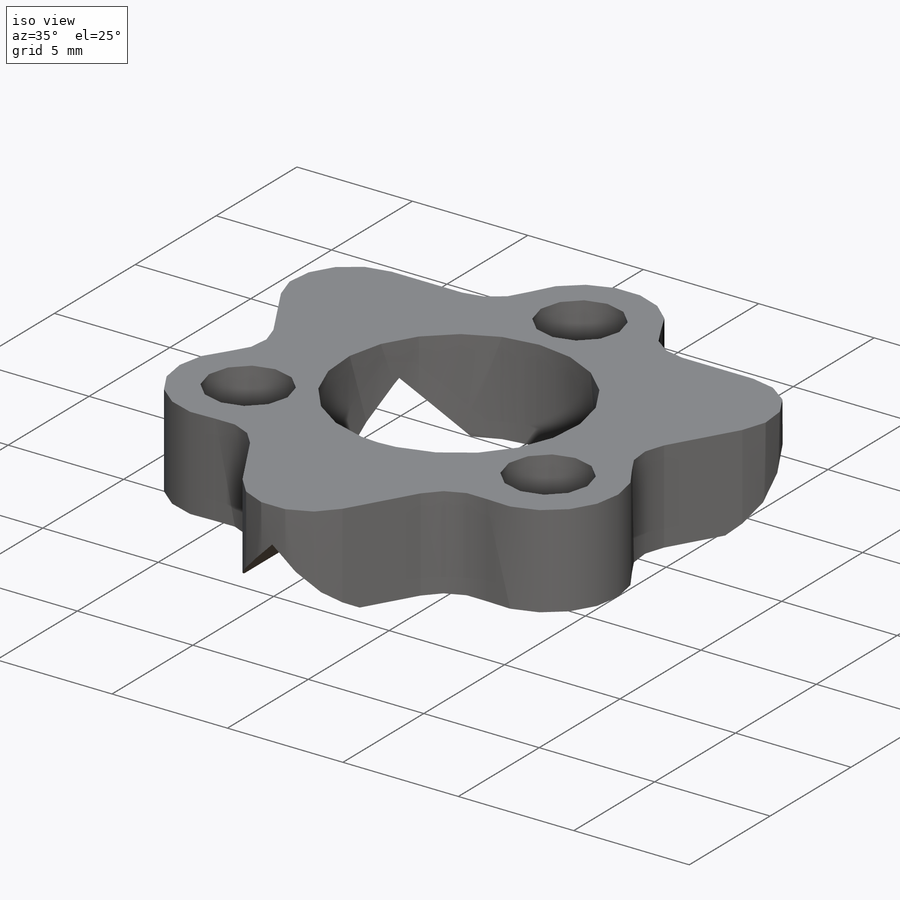
[diagram: iso view]
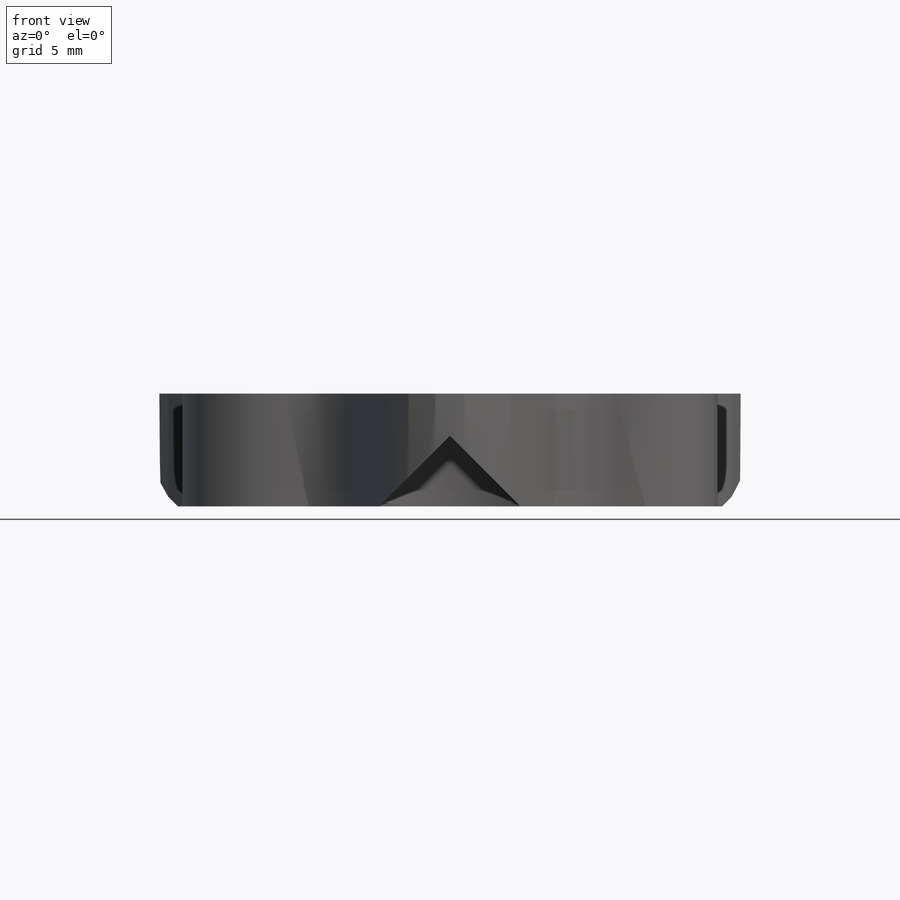
[diagram: front view]
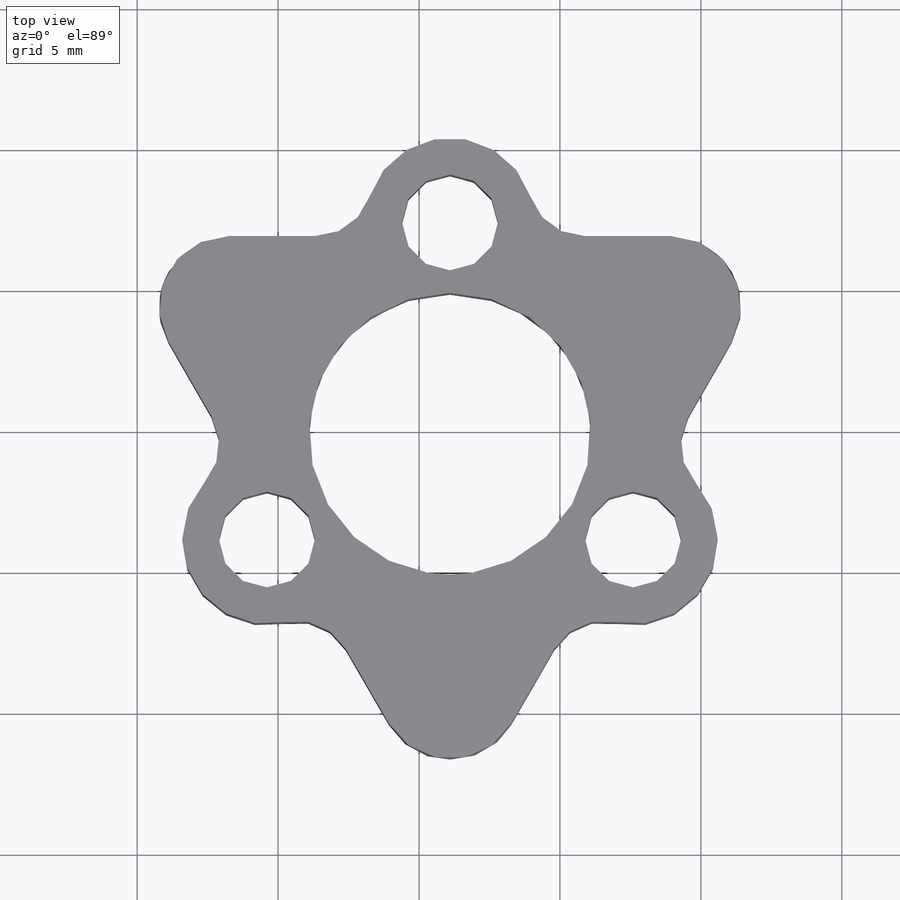
[diagram: top view]
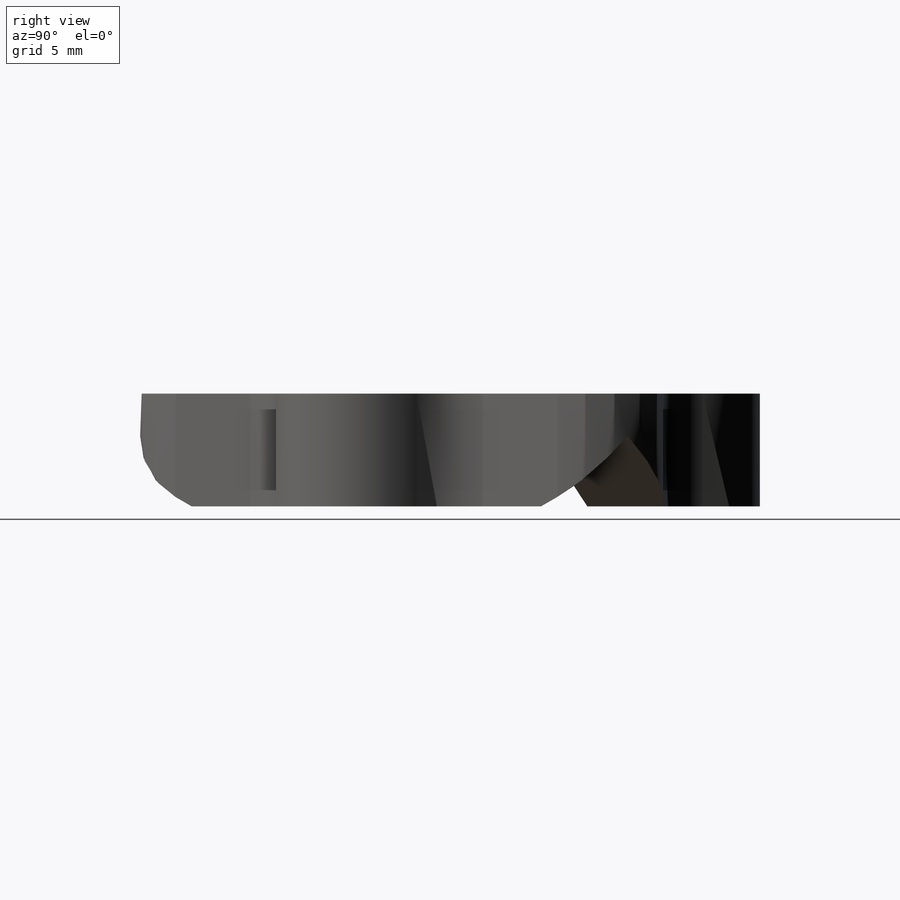
[diagram: right view]
SOLIDWORKS PART (.sldprt)
format: sldprt  version: not decoded by parser v0  size: 286,208 bytes
history: native  units: mm
features: sketch x6, cut_extrude x3, plane x2, material x1, extrude x1, hole x1, pattern_circular x1 (+14 scaffold rows collapsed)
feature tree (29):
  scaffold x14  (default folders/planes/origin — collapsed)
  material  "Chrome Stainless Steel"
  sketch  "Sketch1"  dims[c1.D1=2.5mm c1.D5=1.0mm c2.D1=10.0mm c2.D6=2.5mm c2.D5=15.0mm c2.D7=3.0mm c2.D8=2.0mm c2.D9=3.0mm c2.D10=3.0mm c2.D11=2.0mm c3.D9=2.0mm c3.D11=2.0mm c3.D12=3.0mm c3.D2=~14.352682mm c4.D2=120.0deg c4.D3=~13.069491mm c5.D3=240.0deg c5.D4=~7.545674mm c6.D4=60.0deg c7.D4=24.31mm c7.D6=~8.917862mm c7.D7=~9.953438mm c7.D8=10.0mm c8.D6=10.0mm]
  extrude  "Extrude1"  Depth=4mm
  hole  "M3 Clearance Hole1"  Diameter=3.4mm Depth=10mm
  sketch  "3DSketch1"
  sketch  "Sketch6"  dims[hole-wizard template sketch: 50 standard entries collapsed; hole parameters above]
  pattern_circular  "CirPattern2"  Count=3 Angle=360deg
  sketch  "GrooveSketch"  dims[c1.D2=4.76mm c1.D1=3.18mm c1.D3=~4.330127mm c1.D4=3.18mm c2.D4=~68.49701deg c2.D1=3.18mm c3.D1=90.0deg c3.D4=~2.165064mm c4.D1=2.5mm c4.D3=3.0mm c5.D3=90.0deg c5.D4=~4.493486mm c6.D4=45.0deg]
  cut_extrude  "Extrude4"  [1 undecoded]
  plane  "Plane1"
  plane  "Plane2"
  sketch  "Sketch9"  dims[D1=4.76mm D2=2.5mm D3=90.0deg D4=45.0deg]
  cut_extrude  "Extrude5"  [1 undecoded]
  sketch  "Sketch10"  dims[D1=4.76mm D2=2.5mm D3=90.0deg D4=45.0deg]
  cut_extrude  "Extrude6"  Depth=10mm BallDiameter=10mm
decode coverage: 9 of 12 modeling features carry decoded parameters
note: ~ marks probable driven/reference dimensions
note: 2 parameter values undecoded
note: suppression state not decoded; provenance and decode notes live in map.json
